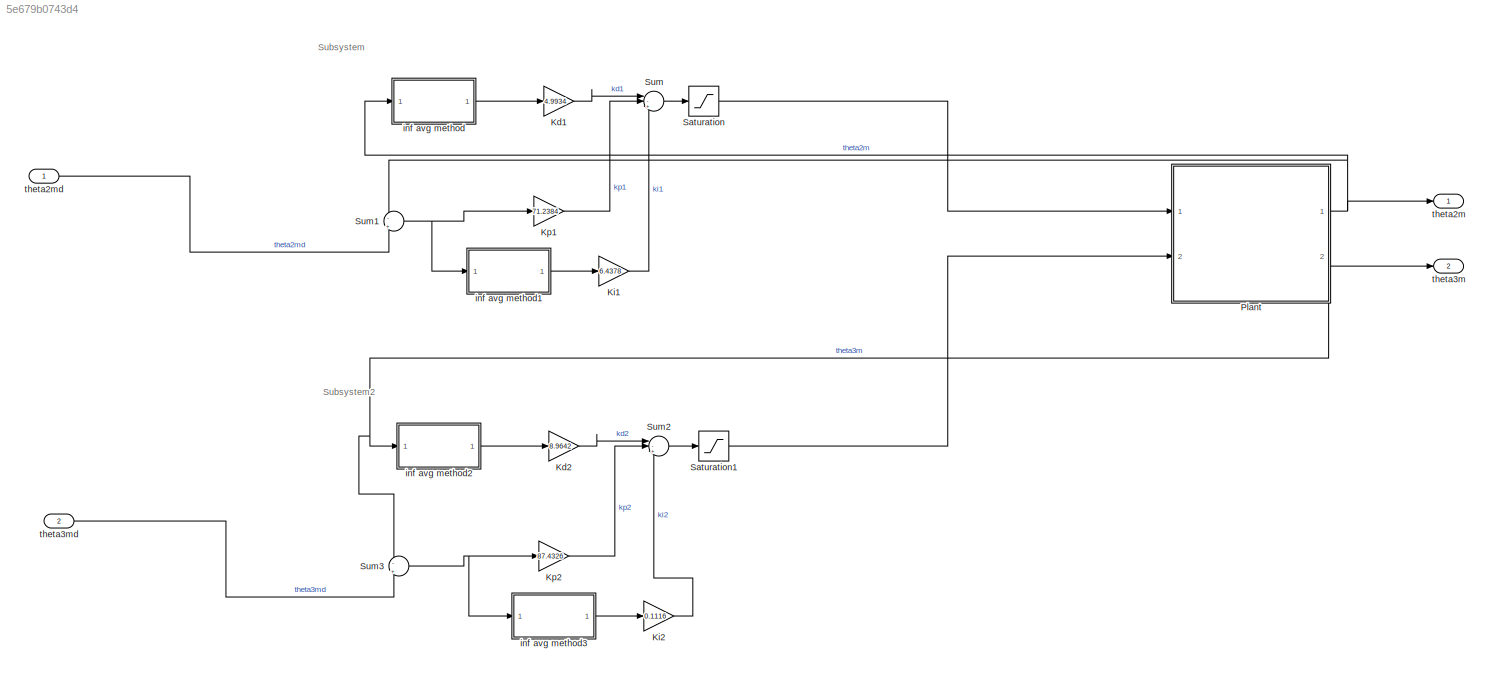
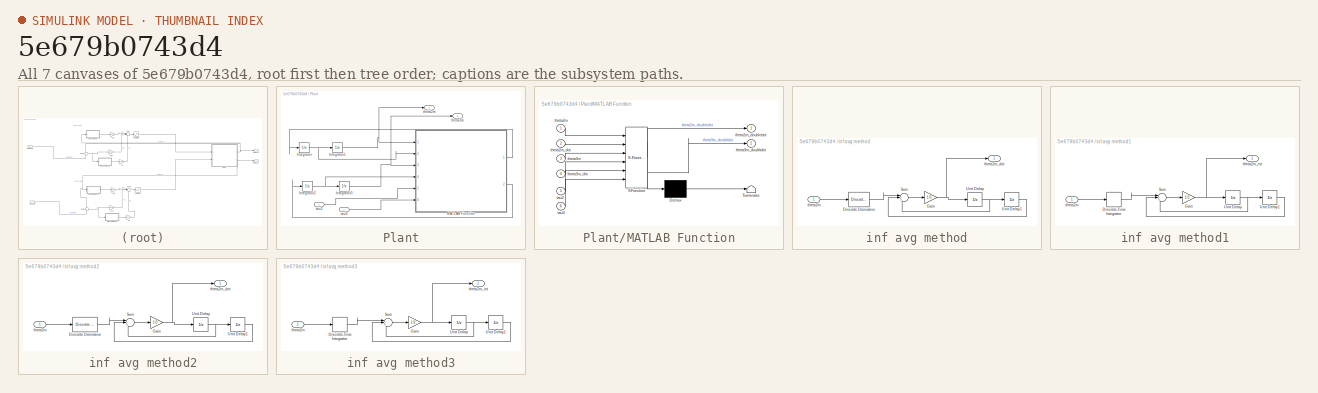
[diagram: thumbnail index - all 7 canvases of the model, root first then tree order]
MODEL slx_5e679b0743d4
KIND model
CONFIG AbsTol = auto
CONFIG EnableMultiTasking = off
CONFIG FixedStep = auto
CONFIG MaxStep = auto
CONFIG MinStep = auto
CONFIG RelTol = 1e-3
CONFIG SampleTimeConstraint = Unconstrained
CONFIG Solver = VariableStepAuto
CONFIG SolverName = VariableStepAuto
CONFIG StartTime = 0.0
CONFIG StopTime = 20
BLOCK [Gain] Kd1
  Gain = 4.9934
BLOCK [Gain] Kd2
  Gain = 8.9642
BLOCK [Gain] Ki1
  Gain = 6.4378
BLOCK [Gain] Ki2
  Gain = 0.1116
BLOCK [Gain] Kp1
  Gain = 71.2384
BLOCK [Gain] Kp2
  Gain = 87.4326
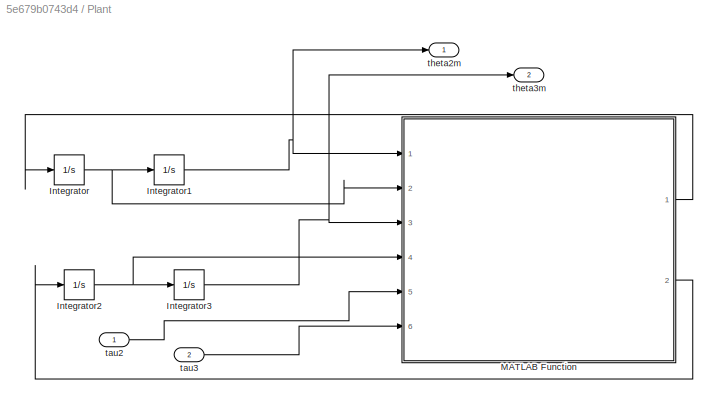
BLOCK [SubSystem] Plant
  Ports = [2, 2]
  RequestExecContextInheritance = off
BLOCK [Integrator] Plant/Integrator
  Ports = [1, 1]
BLOCK [Integrator] Plant/Integrator1
  Ports = [1, 1]
BLOCK [Integrator] Plant/Integrator2
  Ports = [1, 1]
BLOCK [Integrator] Plant/Integrator3
  Ports = [1, 1]
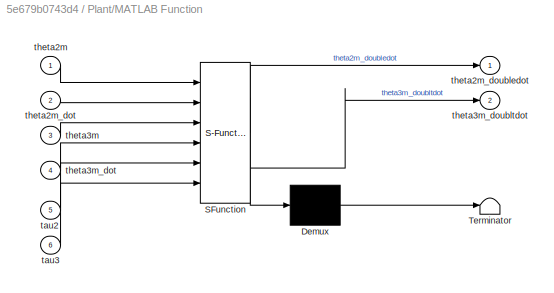
BLOCK [SubSystem] Plant/MATLAB Function
  ErrorFcn = Stateflow.Translate.translate
  PermitHierarchicalResolution = ExplicitOnly
  Ports = [6, 2]
  RequestExecContextInheritance = off
  SFBlockType = MATLAB Function
  TreatAsAtomicUnit = on
BLOCK [Demux] Plant/MATLAB Function/ Demux 
  Outputs = 1
  Ports = [1, 1]
BLOCK [S-Function] Plant/MATLAB Function/ SFunction 
  EnableBusSupport = on
  FunctionName = sf_sfun
  PortCounts = [6 3]
  Ports = [6, 3]
  SFcnIsStateOwnerBlock = off
  SFunctionDeploymentMode = off
  Tag = Stateflow S-Function 2
BLOCK [Terminator] Plant/MATLAB Function/ Terminator 
BLOCK [Inport] Plant/MATLAB Function/tau2
  Port = 5
BLOCK [Inport] Plant/MATLAB Function/tau3
  Port = 6
BLOCK [Inport] Plant/MATLAB Function/theta2m
BLOCK [Inport] Plant/MATLAB Function/theta2m_dot
  Port = 2
BLOCK [Outport] Plant/MATLAB Function/theta2m_doubledot
BLOCK [Inport] Plant/MATLAB Function/theta3m
  Port = 3
BLOCK [Inport] Plant/MATLAB Function/theta3m_dot
  Port = 4
BLOCK [Outport] Plant/MATLAB Function/theta3m_doubltdot
  Port = 2
BLOCK [Inport] Plant/tau2
BLOCK [Inport] Plant/tau3
  Port = 2
BLOCK [Outport] Plant/theta2m
BLOCK [Outport] Plant/theta3m
  Port = 2
BLOCK [Saturate] Saturation
  LowerLimit = -5
  UpperLimit = 5
BLOCK [Saturate] Saturation1
  LowerLimit = -5
  UpperLimit = 5
BLOCK [Sum] Sum
  Inputs = |-++
  Ports = [3, 1]
BLOCK [Sum] Sum1
  Inputs = -|+
  Ports = [2, 1]
BLOCK [Sum] Sum2
  Inputs = |-++
  Ports = [3, 1]
BLOCK [Sum] Sum3
  Inputs = -|+
  Ports = [2, 1]
BLOCK [SubSystem] inf avg method
  Ports = [1, 1]
  RequestExecContextInheritance = off
BLOCK [Reference] inf avg method/Discrete Derivative  REF=simulink/Discrete/Discrete Derivative
  Ports = [1, 1]
  SourceBlock = simulink/Discrete/Discrete Derivative
  SourceProductBaseCode = SL
  SourceType = Discrete Derivative
BLOCK [Gain] inf avg method/Gain
  Gain = 1/3
BLOCK [Sum] inf avg method/Sum
  Inputs = |+++
  Ports = [3, 1]
BLOCK [UnitDelay] inf avg method/Unit Delay
  HasFrameUpgradeWarning = on
  SampleTime = -1
BLOCK [UnitDelay] inf avg method/Unit Delay1
  HasFrameUpgradeWarning = on
  SampleTime = -1
BLOCK [Inport] inf avg method/theta2m
BLOCK [Outport] inf avg method/theta2m_dot
BLOCK [SubSystem] inf avg method1
  Ports = [1, 1]
  RequestExecContextInheritance = off
BLOCK [DiscreteIntegrator] inf avg method1/Discrete-Time Integrator
  ICPrevOutput = DiscIntNeverNeededParam
  ICPrevScaledInput = DiscIntNeverNeededParam
  InitialConditionSetting = Auto
  Ports = [1, 1]
  SampleTime = -1
BLOCK [Gain] inf avg method1/Gain
  Gain = 1/2
BLOCK [Sum] inf avg method1/Sum
  Inputs = |+++
  Ports = [3, 1]
BLOCK [UnitDelay] inf avg method1/Unit Delay
  HasFrameUpgradeWarning = on
  SampleTime = -1
BLOCK [UnitDelay] inf avg method1/Unit Delay1
  HasFrameUpgradeWarning = on
  SampleTime = -1
BLOCK [Inport] inf avg method1/theta2m
BLOCK [Outport] inf avg method1/theta2m_int
BLOCK [SubSystem] inf avg method2
  Ports = [1, 1]
  RequestExecContextInheritance = off
BLOCK [Reference] inf avg method2/Discrete Derivative  REF=simulink/Discrete/Discrete Derivative
  Ports = [1, 1]
  SourceBlock = simulink/Discrete/Discrete Derivative
  SourceProductBaseCode = SL
  SourceType = Discrete Derivative
BLOCK [Gain] inf avg method2/Gain
  Gain = 1/3
BLOCK [Sum] inf avg method2/Sum
  Inputs = |+++
  Ports = [3, 1]
BLOCK [UnitDelay] inf avg method2/Unit Delay
  HasFrameUpgradeWarning = on
  SampleTime = -1
BLOCK [UnitDelay] inf avg method2/Unit Delay1
  HasFrameUpgradeWarning = on
  SampleTime = -1
BLOCK [Inport] inf avg method2/theta2m
BLOCK [Outport] inf avg method2/theta2m_dot
BLOCK [SubSystem] inf avg method3
  Ports = [1, 1]
  RequestExecContextInheritance = off
BLOCK [DiscreteIntegrator] inf avg method3/Discrete-Time Integrator
  ICPrevOutput = DiscIntNeverNeededParam
  ICPrevScaledInput = DiscIntNeverNeededParam
  InitialConditionSetting = Auto
  Ports = [1, 1]
  SampleTime = -1
BLOCK [Gain] inf avg method3/Gain
  Gain = 1/2
BLOCK [Sum] inf avg method3/Sum
  Inputs = |+++
  Ports = [3, 1]
BLOCK [UnitDelay] inf avg method3/Unit Delay
  HasFrameUpgradeWarning = on
  SampleTime = -1
BLOCK [UnitDelay] inf avg method3/Unit Delay1
  HasFrameUpgradeWarning = on
  SampleTime = -1
BLOCK [Inport] inf avg method3/theta2m
BLOCK [Outport] inf avg method3/theta2m_int
BLOCK [Outport] theta2m
BLOCK [Inport] theta2md
BLOCK [Outport] theta3m
  Port = 2
BLOCK [Inport] theta3md
  Port = 2
ANNOTATION (root): Subsystem
ANNOTATION (root): Subsystem2
LINE Kd1:1 -> Sum:1
LINE Kd2:1 -> Sum2:1
LINE Ki1:1 -> Sum:3
LINE Ki2:1 -> Sum2:3
LINE Kp1:1 -> Sum:2
LINE Kp2:1 -> Sum2:2
NET Plant/Integrator1:1 -> Plant/MATLAB Function:1, Plant/theta2m:1
NET Plant/Integrator2:1 -> Plant/Integrator3:1, Plant/MATLAB Function:4
NET Plant/Integrator3:1 -> Plant/MATLAB Function:3, Plant/theta3m:1
NET Plant/Integrator:1 -> Plant/Integrator1:1, Plant/MATLAB Function:2
LINE Plant/MATLAB Function:1 -> Plant/Integrator:1
LINE Plant/MATLAB Function:2 -> Plant/Integrator2:1
LINE Plant/tau2:1 -> Plant/MATLAB Function:5
LINE Plant/tau3:1 -> Plant/MATLAB Function:6
NET Plant:1 -> Sum1:1, inf avg method:1, theta2m:1
NET Plant:2 -> Sum3:1, inf avg method2:1, theta3m:1
LINE Saturation1:1 -> Plant:2
LINE Saturation:1 -> Plant:1
NET Sum1:1 -> Kp1:1, inf avg method1:1
LINE Sum2:1 -> Saturation1:1
NET Sum3:1 -> Kp2:1, inf avg method3:1
LINE Sum:1 -> Saturation:1
LINE inf avg method/Discrete Derivative:1 -> inf avg method/Sum:1
NET inf avg method/Gain:1 -> inf avg method/Unit Delay:1, inf avg method/theta2m_dot:1
LINE inf avg method/Sum:1 -> inf avg method/Gain:1
LINE inf avg method/Unit Delay1:1 -> inf avg method/Sum:2
NET inf avg method/Unit Delay:1 -> inf avg method/Sum:3, inf avg method/Unit Delay1:1
LINE inf avg method/theta2m:1 -> inf avg method/Discrete Derivative:1
LINE inf avg method1/Discrete-Time Integrator:1 -> inf avg method1/Sum:1
NET inf avg method1/Gain:1 -> inf avg method1/Unit Delay:1, inf avg method1/theta2m_int:1
LINE inf avg method1/Sum:1 -> inf avg method1/Gain:1
LINE inf avg method1/Unit Delay1:1 -> inf avg method1/Sum:2
NET inf avg method1/Unit Delay:1 -> inf avg method1/Sum:3, inf avg method1/Unit Delay1:1
LINE inf avg method1/theta2m:1 -> inf avg method1/Discrete-Time Integrator:1
LINE inf avg method1:1 -> Ki1:1
LINE inf avg method2/Discrete Derivative:1 -> inf avg method2/Sum:1
NET inf avg method2/Gain:1 -> inf avg method2/Unit Delay:1, inf avg method2/theta2m_dot:1
LINE inf avg method2/Sum:1 -> inf avg method2/Gain:1
LINE inf avg method2/Unit Delay1:1 -> inf avg method2/Sum:2
NET inf avg method2/Unit Delay:1 -> inf avg method2/Sum:3, inf avg method2/Unit Delay1:1
LINE inf avg method2/theta2m:1 -> inf avg method2/Discrete Derivative:1
LINE inf avg method2:1 -> Kd2:1
LINE inf avg method3/Discrete-Time Integrator:1 -> inf avg method3/Sum:1
NET inf avg method3/Gain:1 -> inf avg method3/Unit Delay:1, inf avg method3/theta2m_int:1
LINE inf avg method3/Sum:1 -> inf avg method3/Gain:1
LINE inf avg method3/Unit Delay1:1 -> inf avg method3/Sum:2
NET inf avg method3/Unit Delay:1 -> inf avg method3/Sum:3, inf avg method3/Unit Delay1:1
LINE inf avg method3/theta2m:1 -> inf avg method3/Discrete-Time Integrator:1
LINE inf avg method3:1 -> Ki2:1
LINE inf avg method:1 -> Kd1:1
LINE theta2md:1 -> Sum1:2
LINE theta3md:1 -> Sum3:2
note: NET lines group one-source signal fan-out (src -> all destinations, sorted); 1:1 wires keep LINE
CHART Plant/MATLAB Function states=1 transitions=1
  STATE_LABEL 'eML_blk_kernel()'
  STATE_LABEL 'SCRIPT:\nfunction [theta2m_doubledot, theta3m_doubltdot]  = fcn(theta2m, theta2m_dot, theta3m, theta3m_dot,tau2, tau3)\np = [0.03;0.0128;0.0076;0.0753;0.0298];\np1=p(1);\np2=p(2);\np3=p(3);\np4=p(4);\np5=p(5);\ng=9.81;\nFic = [-0.04*theta2m_dot; -0.037*theta3m_dot];\ntau = [tau2;tau3];\nD = [p1 -p3*sin(theta3m - theta2m); -p3*sin(theta3m-theta2m) p2];\nC = [0 -p3*cos(theta3m - theta2m)*theta3m_dot;\n    p3*cos...<+219ch>'
CHART  states=0 transitions=0
